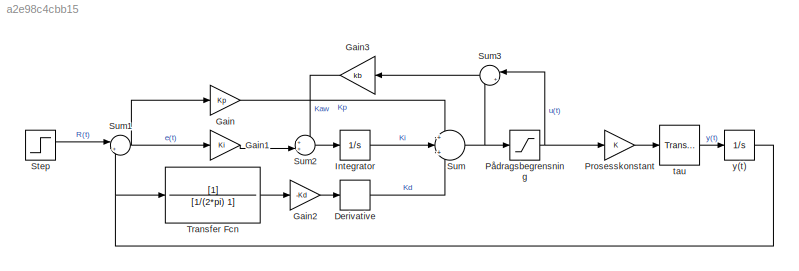
MODEL slx_a2e98c4cbb15
KIND model
CONFIG AbsTol = auto
CONFIG EnableMultiTasking = off
CONFIG FixedStep = 1e-3
CONFIG MaxStep = 10e-9
CONFIG MinStep = auto
CONFIG RelTol = 1e-9
CONFIG SampleTimeConstraint = Unconstrained
CONFIG SolverName = ode1
CONFIG StartTime = 0.0
CONFIG StopTime = 3
BLOCK [Derivative] Derivative
BLOCK [Gain] Gain
  Gain = Kp
BLOCK [Gain] Gain1
  Gain = Ki
BLOCK [Gain] Gain2
  Gain = -Kd
BLOCK [Gain] Gain3
  Gain = kb
  NameLocation = top
BLOCK [Integrator] Integrator
  LimitOutput = on
  LowerSaturationLimit = -250
  UpperSaturationLimit = 250
BLOCK [Gain] Prosesskonstant
  Gain = K
BLOCK [Saturate] Pådragsbegrensning
  LowerLimit = -250
  UpperLimit = 250
BLOCK [Step] Step
  After = setpoint
  SampleTime = 0
  Time = 0.1
BLOCK [Sum] Sum
  Inputs = +|+|+
BLOCK [Sum] Sum1
  Inputs = |+-
BLOCK [Sum] Sum2
  Inputs = ++|
BLOCK [Sum] Sum3
  Inputs = |+-
  NameLocation = top
BLOCK [TransferFcn] Transfer Fcn
  Denominator = [1/(2*pi) 1]
BLOCK [TransportDelay] tau
  BufferSize = 2^16
  DelayTime = Tau
  InitialOutput = avstand_t0
BLOCK [Integrator] y(t)
  InitialCondition = avstand_t0
LINE Derivative:1 -> Sum:3
LINE Gain1:1 -> Sum2:2
LINE Gain2:1 -> Derivative:1
LINE Gain3:1 -> Sum2:1
LINE Gain:1 -> Sum:1
LINE Integrator:1 -> Sum:2
LINE Prosesskonstant:1 -> tau:1
NET Pådragsbegrensning:1 -> Prosesskonstant:1, Sum3:1
LINE Step:1 -> Sum1:1
NET Sum1:1 -> Gain1:1, Gain:1
LINE Sum2:1 -> Integrator:1
LINE Sum3:1 -> Gain3:1
NET Sum:1 -> Pådragsbegrensning:1, Sum3:2
LINE Transfer Fcn:1 -> Gain2:1
LINE tau:1 -> y(t):1
NET y(t):1 -> Sum1:2, Transfer Fcn:1
note: NET lines group one-source signal fan-out (src -> all destinations, sorted); 1:1 wires keep LINE
